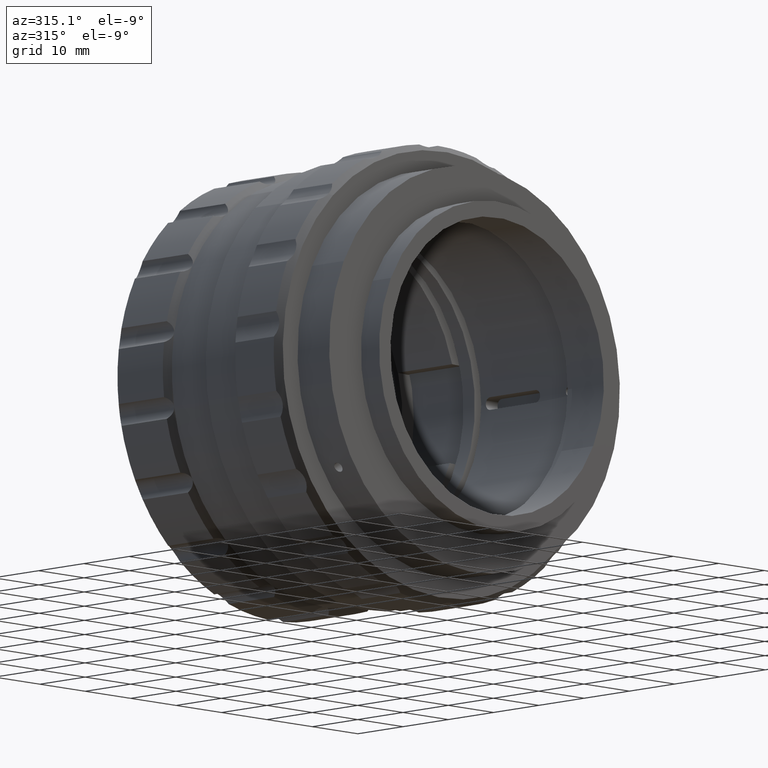
[diagram: clean part render]
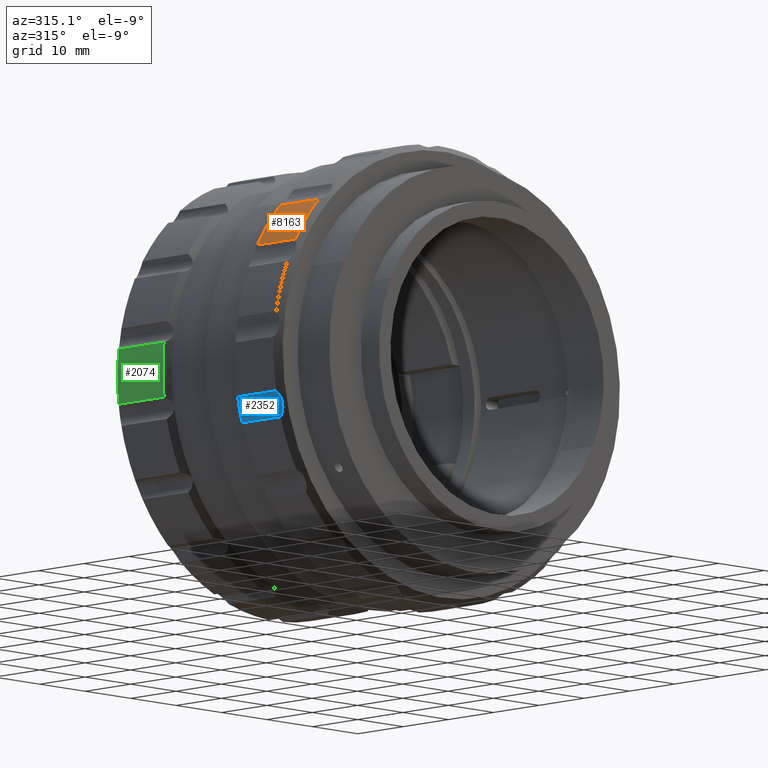
[diagram: same view with three faces highlighted in distinct colors, each labeled with its STEP entity id]
A machine part, auxiliary view with three faces highlighted in distinct colors.
Their STEP definitions:

[orange] entity #8163 — the highlighted cylindrical surface (partial cylindrical patch) has radius 36.25 mm, axis along (0, -1, -0).
#435 = AXIS2_PLACEMENT_3D ( 'NONE', #641, #8886, #7392 ) ;
#641 = CARTESIAN_POINT ( 'NONE',  ( 5.971701014312827738, -23.04875568700542132, 44.90330644533106863 ) ) ;
#1153 = CARTESIAN_POINT ( 'NONE',  ( 5.971701014312827738, -22.04875568700542132, 44.90330644533106863 ) ) ;
#1166 = ORIENTED_EDGE ( 'NONE', *, *, #8743, .F. ) ;
#1391 = DIRECTION ( 'NONE',  ( 0.6871969081691013947, 0.000000000000000000, -0.7264712034229763304 ) ) ;
#1650 = CARTESIAN_POINT ( 'NONE',  ( -25.47195305268803622, -13.54875568700542132, 62.94102023934558332 ) ) ;
#2008 = EDGE_LOOP ( 'NONE', ( #7751, #6225, #1166, #8718 ) ) ;
#2037 = EDGE_CURVE ( 'NONE', #3887, #2620, #10353, .T. ) ;
#2620 = VERTEX_POINT ( 'NONE', #7761 ) ;
#2881 = CARTESIAN_POINT ( 'NONE',  ( -25.47195305268803622, -14.04875568700541955, 62.94102023934558332 ) ) ;
#3658 = VECTOR ( 'NONE', #8548, 1000.000000000000000 ) ;
#3887 = VERTEX_POINT ( 'NONE', #1650 ) ;
#4440 = DIRECTION ( 'NONE',  ( 0.000000000000000000, -1.000000000000000000, -0.000000000000000000 ) ) ;
#4630 = DIRECTION ( 'NONE',  ( 0.000000000000000000, -1.000000000000000000, -0.000000000000000000 ) ) ;
#5731 = CIRCLE ( 'NONE', #7774, 36.25000000000000711 ) ;
#6225 = ORIENTED_EDGE ( 'NONE', *, *, #2037, .T. ) ;
#6947 = CARTESIAN_POINT ( 'NONE',  ( -20.39186388065055411, -13.54875568700542132, 69.78351838231132831 ) ) ;
#7136 = CIRCLE ( 'NONE', #7474, 36.25000000000000711 ) ;
#7147 = CARTESIAN_POINT ( 'NONE',  ( -20.39186388065054345, -22.04875568700542132, 69.78351838231134252 ) ) ;
#7164 = CARTESIAN_POINT ( 'NONE',  ( -20.39186388065057542, -14.04875568700541955, 69.78351838231132831 ) ) ;
#7392 = DIRECTION ( 'NONE',  ( 0.6871969081691013947, 0.000000000000000000, -0.7264712034229763304 ) ) ;
#7474 = AXIS2_PLACEMENT_3D ( 'NONE', #1153, #4440, #7948 ) ;
#7721 = EDGE_CURVE ( 'NONE', #8056, #8695, #10348, .T. ) ;
#7751 = ORIENTED_EDGE ( 'NONE', *, *, #10524, .T. ) ;
#7761 = CARTESIAN_POINT ( 'NONE',  ( -25.47195305268803622, -22.04875568700542132, 62.94102023934554069 ) ) ;
#7774 = AXIS2_PLACEMENT_3D ( 'NONE', #8085, #4630, #1391 ) ;
#7948 = DIRECTION ( 'NONE',  ( 0.6871969081691013947, 0.000000000000000000, -0.7264712034229763304 ) ) ;
#7976 = FACE_OUTER_BOUND ( 'NONE', #2008, .T. ) ;
#8056 = VERTEX_POINT ( 'NONE', #7147 ) ;
#8085 = CARTESIAN_POINT ( 'NONE',  ( 5.971701014312827738, -13.54875568700542132, 44.90330644533106863 ) ) ;
#8163 = ADVANCED_FACE ( 'NONE', ( #7976 ), #8832, .T. ) ;
#8548 = DIRECTION ( 'NONE',  ( 0.000000000000000000, -1.000000000000000000, -0.000000000000000000 ) ) ;
#8695 = VERTEX_POINT ( 'NONE', #6947 ) ;
#8718 = ORIENTED_EDGE ( 'NONE', *, *, #7721, .T. ) ;
#8743 = EDGE_CURVE ( 'NONE', #8056, #2620, #7136, .T. ) ;
#8832 = CYLINDRICAL_SURFACE ( 'NONE', #435, 36.25000000000000711 ) ;
#8886 = DIRECTION ( 'NONE',  ( 0.000000000000000000, -1.000000000000000000, -0.000000000000000000 ) ) ;
#9985 = VECTOR ( 'NONE', #10406, 1000.000000000000000 ) ;
#10348 = LINE ( 'NONE', #7164, #9985 ) ;
#10353 = LINE ( 'NONE', #2881, #3658 ) ;
#10406 = DIRECTION ( 'NONE',  ( -0.000000000000000000, 1.000000000000000000, 0.000000000000000000 ) ) ;
#10524 = EDGE_CURVE ( 'NONE', #8695, #3887, #5731, .T. ) ;

[blue] entity #2352 — the highlighted cylindrical surface (edge-blend (fillet) strip) has radius 5 mm, axis along (0, -1, -0).
#98 = CARTESIAN_POINT ( 'NONE',  ( -28.72919798943664915, -22.53743217542644572, 36.25737312895135744 ) ) ;
#508 = CARTESIAN_POINT ( 'NONE',  ( -28.68382246825724380, -13.10530576382638479, 35.89577067371529040 ) ) ;
#673 = CARTESIAN_POINT ( 'NONE',  ( -28.69407072252180058, -13.39445900096631448, 34.83991659855058742 ) ) ;
#1174 = ORIENTED_EDGE ( 'NONE', *, *, #8922, .F. ) ;
#1366 = CARTESIAN_POINT ( 'NONE',  ( -29.70995438893312723, -13.54875568700542132, 38.50940562626844610 ) ) ;
#1662 = CARTESIAN_POINT ( 'NONE',  ( -29.70995438893311658, -22.04875568700542132, 38.50940562626842478 ) ) ;
#1813 = CARTESIAN_POINT ( 'NONE',  ( -28.66513529429686713, -22.37300402163702984, 35.36502717631245929 ) ) ;
#2171 = CARTESIAN_POINT ( 'NONE',  ( -28.66226209246553225, -13.26992519792126402, 35.18050071944740864 ) ) ;
#2227 = CARTESIAN_POINT ( 'NONE',  ( -29.60779707163024810, -13.47153614465997151, 38.37710238809863483 ) ) ;
#2352 = ADVANCED_FACE ( 'NONE', ( #7828 ), #2791, .F. ) ;
#2556 = EDGE_CURVE ( 'NONE', #9833, #9968, #5969, .T. ) ;
#2705 = VERTEX_POINT ( 'NONE', #10052 ) ;
#2740 = DIRECTION ( 'NONE',  ( 0.000000000000000000, -1.000000000000000000, -0.000000000000000000 ) ) ;
#2791 = CYLINDRICAL_SURFACE ( 'NONE', #6679, 4.999999999999992895 ) ;
#2865 = LINE ( 'NONE', #5342, #3477 ) ;
#3086 = CARTESIAN_POINT ( 'NONE',  ( -29.32868882992431736, -13.27814271918902023, 37.94451446628974622 ) ) ;
#3133 = EDGE_CURVE ( 'NONE', #2705, #3924, #5112, .T. ) ;
#3381 = CARTESIAN_POINT ( 'NONE',  ( -28.75697702213457774, -22.04875568700542132, 34.51189548046320965 ) ) ;
#3477 = VECTOR ( 'NONE', #10399, 1000.000000000000000 ) ;
#3500 = EDGE_CURVE ( 'NONE', #3924, #9833, #2865, .T. ) ;
#3662 = ORIENTED_EDGE ( 'NONE', *, *, #3133, .F. ) ;
#3857 = CARTESIAN_POINT ( 'NONE',  ( -29.08876496322219651, -13.13808612223067129, 37.47021155525572311 ) ) ;
#3924 = VERTEX_POINT ( 'NONE', #4138 ) ;
#4043 = CARTESIAN_POINT ( 'NONE',  ( -28.72549484457494628, -22.12597522935086758, 34.67605740298132844 ) ) ;
#4117 = LINE ( 'NONE', #7522, #5431 ) ;
#4138 = CARTESIAN_POINT ( 'NONE',  ( -29.70995438893312723, -13.54875568700542132, 38.50940562626844610 ) ) ;
#4160 = DIRECTION ( 'NONE',  ( -0.000000000000000000, 1.000000000000000000, 0.000000000000000000 ) ) ;
#4769 = CARTESIAN_POINT ( 'NONE',  ( -29.24310300979165334, -13.22450735237382524, 37.78946230681300733 ) ) ;
#5002 = CARTESIAN_POINT ( 'NONE',  ( -29.09065114208549119, -22.45848575386845170, 37.47456233469468145 ) ) ;
#5104 = CARTESIAN_POINT ( 'NONE',  ( -28.68398956033500724, -22.49260997893739500, 35.89800375516242070 ) ) ;
#5112 = B_SPLINE_CURVE_WITH_KNOTS ( 'NONE', 3,
 ( #9501, #673, #2171, #5460, #508, #6251, #8704, #10199, #5356, #9446, #3857, #4769, #3086, #9401, #2227, #1366 ),
 .UNSPECIFIED., .F., .F.,
 ( 4, 2, 2, 2, 2, 2, 2, 4 ),
 ( 4.716633616235205324E-07, 0.001092205581411871945, 0.001638072540436996336, 0.002183939499462121160, 0.002729806458487245551, 0.003275673417512369942, 0.003821540376537495200, 0.004367407335562619591 ),
 .UNSPECIFIED. ) ;
#5257 = ORIENTED_EDGE ( 'NONE', *, *, #2556, .F. ) ;
#5342 = CARTESIAN_POINT ( 'NONE',  ( -29.70995438893312723, -14.04875568700541955, 38.50940562626844610 ) ) ;
#5356 = CARTESIAN_POINT ( 'NONE',  ( -28.89769716426642887, -13.06007919858438981, 36.96418651656064469 ) ) ;
#5431 = VECTOR ( 'NONE', #4160, 1000.000000000000000 ) ;
#5460 = CARTESIAN_POINT ( 'NONE',  ( -28.67114559103407956, -13.13902562014239450, 35.71483775468355049 ) ) ;
#5969 = B_SPLINE_CURVE_WITH_KNOTS ( 'NONE', 3,
 ( #1662, #9841, #7350, #5002, #7452, #6544, #8147, #8198, #98, #5104, #9149, #1813, #6494, #9745, #4043, #3381 ),
 .UNSPECIFIED., .F., .F.,
 ( 4, 2, 2, 2, 2, 2, 2, 4 ),
 ( 4.716633616595564904E-07, 0.001092205581411910108, 0.001638072540437027344, 0.002183939499462144579, 0.002729806458487261597, 0.003275673417512378616, 0.003821540376537495634, 0.004367407335562611785 ),
 .UNSPECIFIED. ) ;
#6251 = CARTESIAN_POINT ( 'NONE',  ( -28.72859154865106390, -13.06044583316106511, 36.25344180602168365 ) ) ;
#6494 = CARTESIAN_POINT ( 'NONE',  ( -28.67156514704080550, -22.31936865482183308, 35.18803914914711584 ) ) ;
#6544 = CARTESIAN_POINT ( 'NONE',  ( -28.89892954808395586, -22.53706554084977398, 36.96796861922054234 ) ) ;
#6679 = AXIS2_PLACEMENT_3D ( 'NONE', #10114, #2740, #7671 ) ;
#6878 = CARTESIAN_POINT ( 'NONE',  ( -28.75697702213457774, -22.04875568700542132, 34.51189548046320965 ) ) ;
#7116 = EDGE_LOOP ( 'NONE', ( #1174, #5257, #9391, #3662 ) ) ;
#7350 = CARTESIAN_POINT ( 'NONE',  ( -29.32378725377530060, -22.32758617608957863, 37.95543917672173251 ) ) ;
#7452 = CARTESIAN_POINT ( 'NONE',  ( -29.02033739954228508, -22.49220561018445963, 37.30736962547850766 ) ) ;
#7522 = CARTESIAN_POINT ( 'NONE',  ( -28.75697702213458484, -14.04875568700541955, 34.51189548046318123 ) ) ;
#7671 = DIRECTION ( 'NONE',  ( 0.6871969081691016168, 0.000000000000000000, -0.7264712034229761084 ) ) ;
#7828 = FACE_OUTER_BOUND ( 'NONE', #7116, .T. ) ;
#8147 = CARTESIAN_POINT ( 'NONE',  ( -28.84719804957446954, -22.54857976888866133, 36.79450859247022265 ) ) ;
#8198 = CARTESIAN_POINT ( 'NONE',  ( -28.76232303050982608, -22.54892761526755862, 36.43979433297867132 ) ) ;
#8319 = CARTESIAN_POINT ( 'NONE',  ( -29.70995438893311658, -22.04875568700542132, 38.50940562626842478 ) ) ;
#8704 = CARTESIAN_POINT ( 'NONE',  ( -28.76067962673986145, -13.04893160512217598, 36.43158468144146411 ) ) ;
#8922 = EDGE_CURVE ( 'NONE', #9968, #2705, #4117, .T. ) ;
#9149 = CARTESIAN_POINT ( 'NONE',  ( -28.67142510887367735, -22.45942525178016780, 35.71957155043413934 ) ) ;
#9391 = ORIENTED_EDGE ( 'NONE', *, *, #3500, .F. ) ;
#9401 = CARTESIAN_POINT ( 'NONE',  ( -29.51090739780277517, -13.40161265325216355, 38.23796330722009884 ) ) ;
#9446 = CARTESIAN_POINT ( 'NONE',  ( -29.01947907437714136, -13.10490139507344409, 37.30530132897585105 ) ) ;
#9501 = CARTESIAN_POINT ( 'NONE',  ( -28.75697702213458484, -13.54875568700542132, 34.51189548046318123 ) ) ;
#9745 = CARTESIAN_POINT ( 'NONE',  ( -28.70179774072596857, -22.19589872075869152, 34.84394349529181056 ) ) ;
#9833 = VERTEX_POINT ( 'NONE', #8319 ) ;
#9841 = CARTESIAN_POINT ( 'NONE',  ( -29.50582814011433896, -22.20305237304452817, 38.24504312706428522 ) ) ;
#9968 = VERTEX_POINT ( 'NONE', #6878 ) ;
#10052 = CARTESIAN_POINT ( 'NONE',  ( -28.75697702213458484, -13.54875568700542132, 34.51189548046318123 ) ) ;
#10114 = CARTESIAN_POINT ( 'NONE',  ( -33.66749356888019662, -5.048755687005415993, 35.45361053510414706 ) ) ;
#10199 = CARTESIAN_POINT ( 'NONE',  ( -28.84496095113700065, -13.04858375874327159, 36.78644047342706358 ) ) ;
#10399 = DIRECTION ( 'NONE',  ( 0.000000000000000000, -1.000000000000000000, -0.000000000000000000 ) ) ;

[green] entity #2074 — the highlighted cylindrical surface (partial cylindrical patch) has radius 34.75 mm, axis along (-0, -1, -0).
#1764 = EDGE_CURVE ( 'NONE', #2247, #4299, #8293, .T. ) ;
#2066 = VERTEX_POINT ( 'NONE', #6358 ) ;
#2074 = ADVANCED_FACE ( 'NONE', ( #4603 ), #5512, .T. ) ;
#2114 = DIRECTION ( 'NONE',  ( 0.000000000000000000, 0.000000000000000000, -1.000000000000000000 ) ) ;
#2247 = VERTEX_POINT ( 'NONE', #7565 ) ;
#2452 = AXIS2_PLACEMENT_3D ( 'NONE', #7744, #7004, #10295 ) ;
#4054 = LINE ( 'NONE', #10548, #5599 ) ;
#4082 = DIRECTION ( 'NONE',  ( 0.000000000000000000, 0.000000000000000000, -1.000000000000000000 ) ) ;
#4299 = VERTEX_POINT ( 'NONE', #8119 ) ;
#4495 = CARTESIAN_POINT ( 'NONE',  ( 5.971701014312827738, -9.548755687005433757, 44.90330644533106863 ) ) ;
#4603 = FACE_OUTER_BOUND ( 'NONE', #5142, .T. ) ;
#4802 = LINE ( 'NONE', #8901, #9834 ) ;
#5142 = EDGE_LOOP ( 'NONE', ( #8546, #8808, #8972, #8024 ) ) ;
#5512 = CYLINDRICAL_SURFACE ( 'NONE', #7320, 34.75000000000000000 ) ;
#5599 = VECTOR ( 'NONE', #9706, 1000.000000000000000 ) ;
#6358 = CARTESIAN_POINT ( 'NONE',  ( -28.50548936777925846, 3.951244312994556918, 40.55752189510557315 ) ) ;
#6462 = VERTEX_POINT ( 'NONE', #9230 ) ;
#6578 = DIRECTION ( 'NONE',  ( -0.000000000000000000, -1.000000000000000000, -0.000000000000000000 ) ) ;
#7004 = DIRECTION ( 'NONE',  ( -0.000000000000000000, -1.000000000000000000, -0.000000000000000000 ) ) ;
#7282 = AXIS2_PLACEMENT_3D ( 'NONE', #8133, #6578, #4082 ) ;
#7320 = AXIS2_PLACEMENT_3D ( 'NONE', #4495, #7904, #2114 ) ;
#7565 = CARTESIAN_POINT ( 'NONE',  ( -28.50548936777920872, 13.95124431299456269, 49.24909099555679859 ) ) ;
#7744 = CARTESIAN_POINT ( 'NONE',  ( 5.971701014312827738, 3.951244312994556918, 44.90330644533106863 ) ) ;
#7904 = DIRECTION ( 'NONE',  ( -0.000000000000000000, -1.000000000000000000, -0.000000000000000000 ) ) ;
#8024 = ORIENTED_EDGE ( 'NONE', *, *, #8075, .T. ) ;
#8042 = DIRECTION ( 'NONE',  ( 0.000000000000000000, -1.000000000000000000, -0.000000000000000000 ) ) ;
#8075 = EDGE_CURVE ( 'NONE', #6462, #2247, #4054, .T. ) ;
#8119 = CARTESIAN_POINT ( 'NONE',  ( -28.50548936777923714, 13.95124431299455914, 40.55752189510556605 ) ) ;
#8133 = CARTESIAN_POINT ( 'NONE',  ( 5.971701014312827738, 13.95124431299455914, 44.90330644533106863 ) ) ;
#8293 = CIRCLE ( 'NONE', #7282, 34.75000000000000000 ) ;
#8546 = ORIENTED_EDGE ( 'NONE', *, *, #1764, .T. ) ;
#8808 = ORIENTED_EDGE ( 'NONE', *, *, #9107, .T. ) ;
#8901 = CARTESIAN_POINT ( 'NONE',  ( -28.50548936777925846, 7.451244312994560026, 40.55752189510557315 ) ) ;
#8972 = ORIENTED_EDGE ( 'NONE', *, *, #9616, .F. ) ;
#9107 = EDGE_CURVE ( 'NONE', #4299, #2066, #4802, .T. ) ;
#9230 = CARTESIAN_POINT ( 'NONE',  ( -28.50548936777923004, 3.951244312994556918, 49.24909099555679859 ) ) ;
#9449 = CIRCLE ( 'NONE', #2452, 34.75000000000000000 ) ;
#9616 = EDGE_CURVE ( 'NONE', #6462, #2066, #9449, .T. ) ;
#9706 = DIRECTION ( 'NONE',  ( 0.000000000000000000, 1.000000000000000000, -0.000000000000000000 ) ) ;
#9834 = VECTOR ( 'NONE', #8042, 1000.000000000000000 ) ;
#10295 = DIRECTION ( 'NONE',  ( 0.000000000000000000, 0.000000000000000000, -1.000000000000000000 ) ) ;
#10548 = CARTESIAN_POINT ( 'NONE',  ( -28.50548936777923004, 7.451244312994560026, 49.24909099555679859 ) ) ;